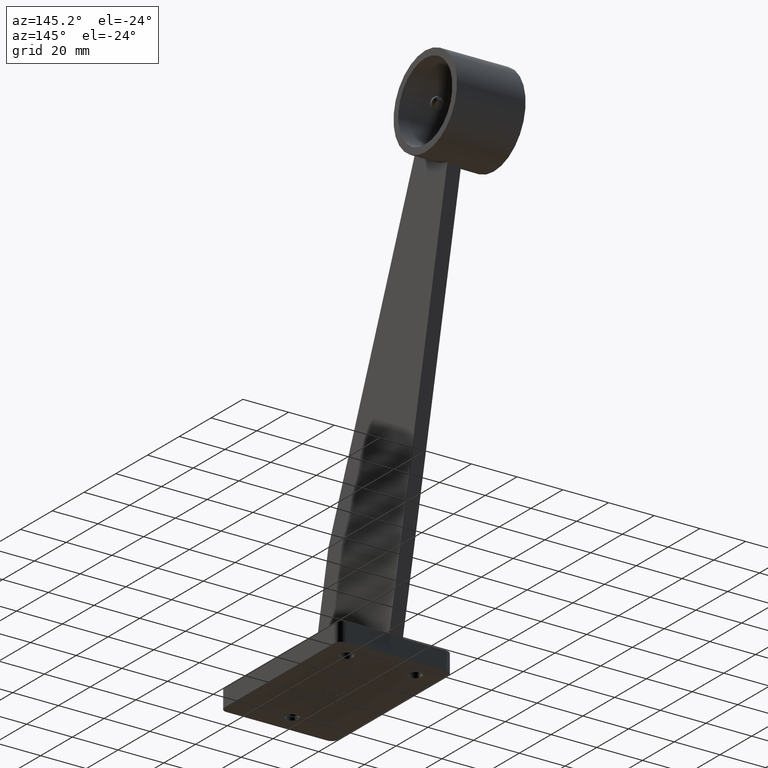
[diagram: clean part render]
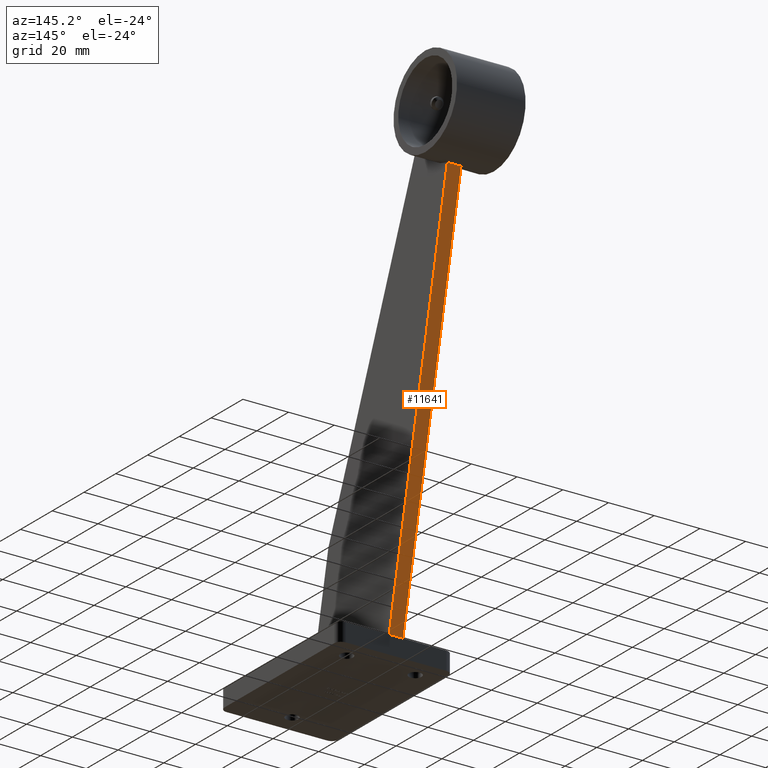
[diagram: same view with one face highlighted and labeled with its STEP entity id]
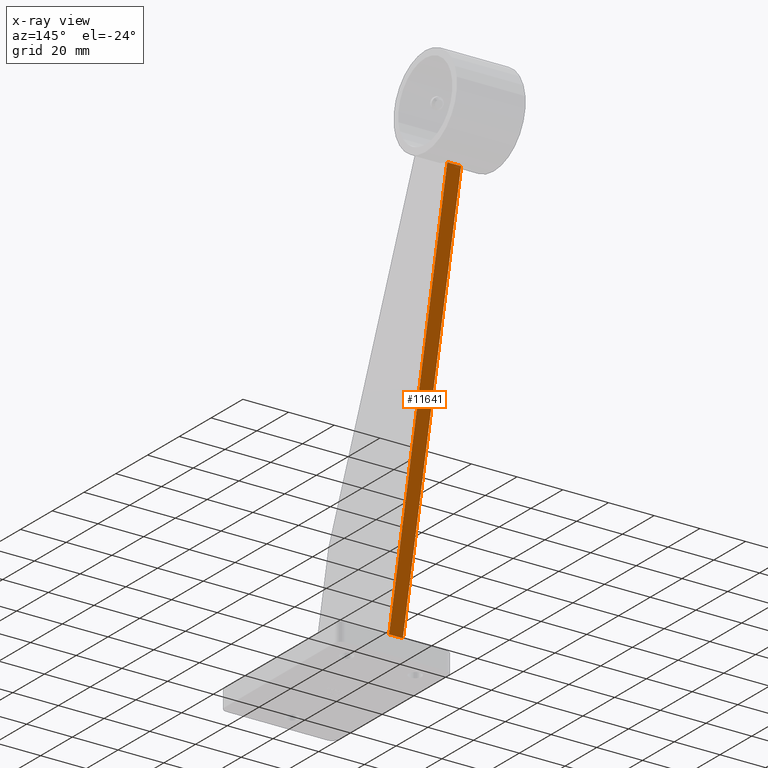
[diagram: x-ray of the same camera — body ghosted, the highlighted face saturated]
A machine part, auxiliary view. The second image highlights one B-rep face of the part: STEP entity #11641.
The next image is the same camera in x-ray: the body ghosted, the highlighted face saturated — about 0% of this face is hidden behind the body in this view.
In plain terms, the highlighted planar face has unit normal (0, -0.9781, 0.2079).
Its self-contained STEP definition (entity closure, byte-faithful):
#74 = PLANE ( 'NONE',  #6353 ) ;
#102 = VECTOR ( 'NONE', #7418, 1000.000000000000000 ) ;
#380 = CARTESIAN_POINT ( 'NONE',  ( 3.000000000000000000, 74.12084583836528395, 180.2875339657386746 ) ) ;
#914 = LINE ( 'NONE', #9191, #3858 ) ;
#993 = EDGE_CURVE ( 'NONE', #9206, #6369, #8602, .T. ) ;
#1099 = CARTESIAN_POINT ( 'NONE',  ( 3.000000000000000000, 34.25203075849547929, -7.280493888241779565 ) ) ;
#1274 = EDGE_LOOP ( 'NONE', ( #2756, #11504, #1634, #9556 ) ) ;
#1376 = EDGE_CURVE ( 'NONE', #5791, #8507, #914, .T. ) ;
#1634 = ORIENTED_EDGE ( 'NONE', *, *, #1376, .F. ) ;
#2261 = DIRECTION ( 'NONE',  ( 0.000000000000000000, -0.9781476007338048007, 0.2079116908177631728 ) ) ;
#2599 = FACE_OUTER_BOUND ( 'NONE', #1274, .T. ) ;
#2756 = ORIENTED_EDGE ( 'NONE', *, *, #993, .T. ) ;
#3372 = EDGE_CURVE ( 'NONE', #5791, #9206, #6047, .T. ) ;
#3858 = VECTOR ( 'NONE', #6296, 1000.000000000000114 ) ;
#3956 = EDGE_CURVE ( 'NONE', #8507, #6369, #11791, .T. ) ;
#5791 = VERTEX_POINT ( 'NONE', #6185 ) ;
#6015 = DIRECTION ( 'NONE',  ( -1.000000000000000000, -0.000000000000000000, -0.000000000000000000 ) ) ;
#6047 = LINE ( 'NONE', #6395, #102 ) ;
#6185 = CARTESIAN_POINT ( 'NONE',  ( 3.000000000000000000, 37.50000000000000000, 7.999999999999998224 ) ) ;
#6287 = DIRECTION ( 'NONE',  ( 0.000000000000000000, -0.2079116908177631728, -0.9781476007338048007 ) ) ;
#6296 = DIRECTION ( 'NONE',  ( 0.000000000000000000, 0.2079116908177631728, 0.9781476007338048007 ) ) ;
#6353 = AXIS2_PLACEMENT_3D ( 'NONE', #1099, #2261, #6287 ) ;
#6369 = VERTEX_POINT ( 'NONE', #8355 ) ;
#6395 = CARTESIAN_POINT ( 'NONE',  ( 3.000000000000000000, 37.50000000000000000, 7.999999999999998224 ) ) ;
#6515 = CARTESIAN_POINT ( 'NONE',  ( 2.999999999999999112, 74.12084583836526974, 180.2875339657386746 ) ) ;
#7402 = VECTOR ( 'NONE', #10872, 1000.000000000000114 ) ;
#7418 = DIRECTION ( 'NONE',  ( -1.000000000000000000, -0.000000000000000000, -0.000000000000000000 ) ) ;
#8236 = VECTOR ( 'NONE', #6015, 1000.000000000000000 ) ;
#8355 = CARTESIAN_POINT ( 'NONE',  ( -3.000000000000000000, 74.12084583836528395, 180.2875339657386746 ) ) ;
#8507 = VERTEX_POINT ( 'NONE', #6515 ) ;
#8602 = LINE ( 'NONE', #9057, #7402 ) ;
#9057 = CARTESIAN_POINT ( 'NONE',  ( -3.000000000000000000, 34.25203075849547929, -7.280493888241779565 ) ) ;
#9191 = CARTESIAN_POINT ( 'NONE',  ( 3.000000000000000000, 34.25203075849547929, -7.280493888241779565 ) ) ;
#9206 = VERTEX_POINT ( 'NONE', #11695 ) ;
#9556 = ORIENTED_EDGE ( 'NONE', *, *, #3372, .T. ) ;
#10872 = DIRECTION ( 'NONE',  ( 0.000000000000000000, 0.2079116908177631728, 0.9781476007338048007 ) ) ;
#11504 = ORIENTED_EDGE ( 'NONE', *, *, #3956, .F. ) ;
#11641 = ADVANCED_FACE ( 'NONE', ( #2599 ), #74, .F. ) ;
#11695 = CARTESIAN_POINT ( 'NONE',  ( -3.000000000000000000, 37.50000000000000000, 7.999999999999998224 ) ) ;
#11791 = LINE ( 'NONE', #380, #8236 ) ;